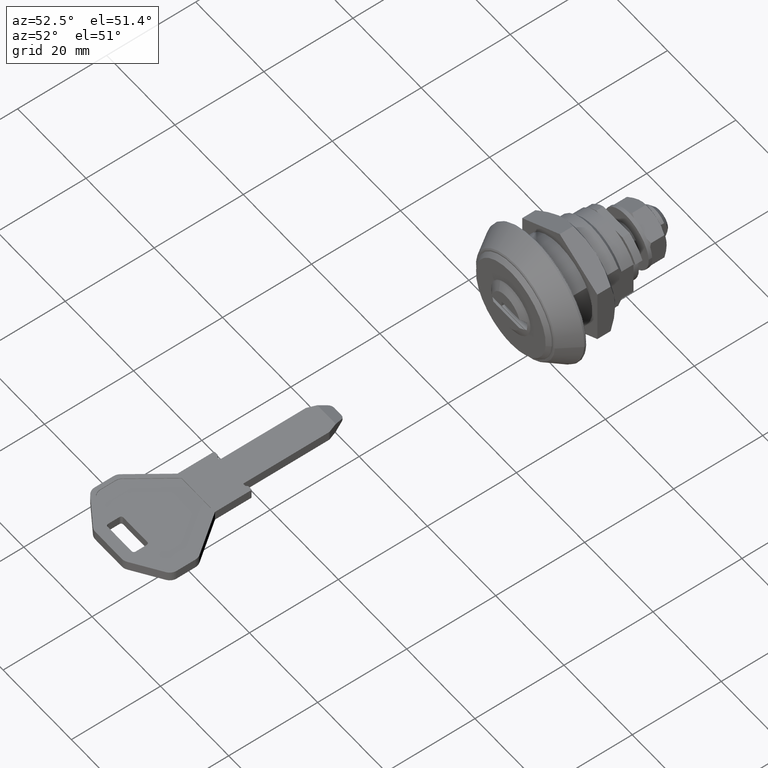
[diagram: clean part render]
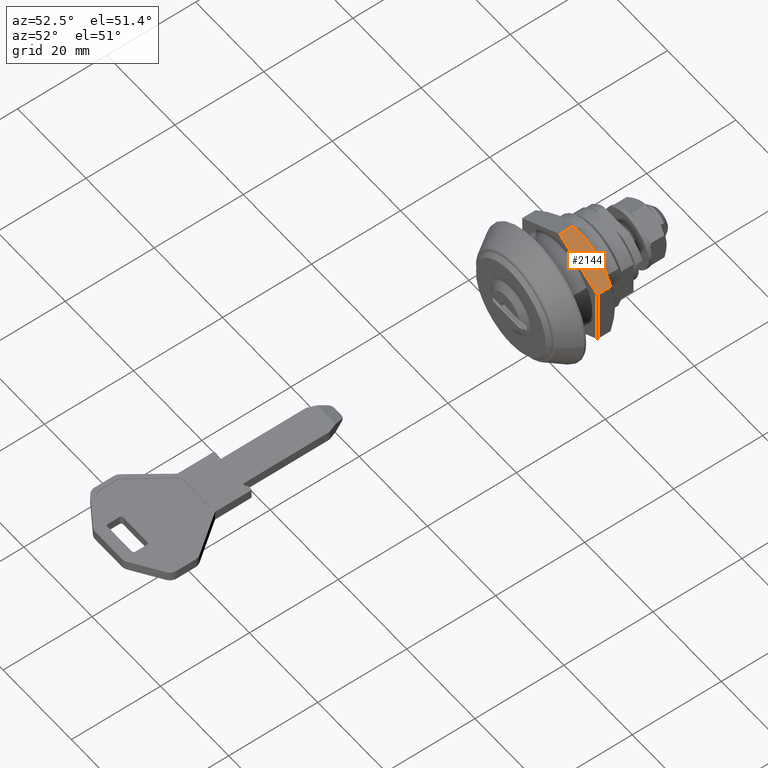
[diagram: same view with one face highlighted and labeled with its STEP entity id]
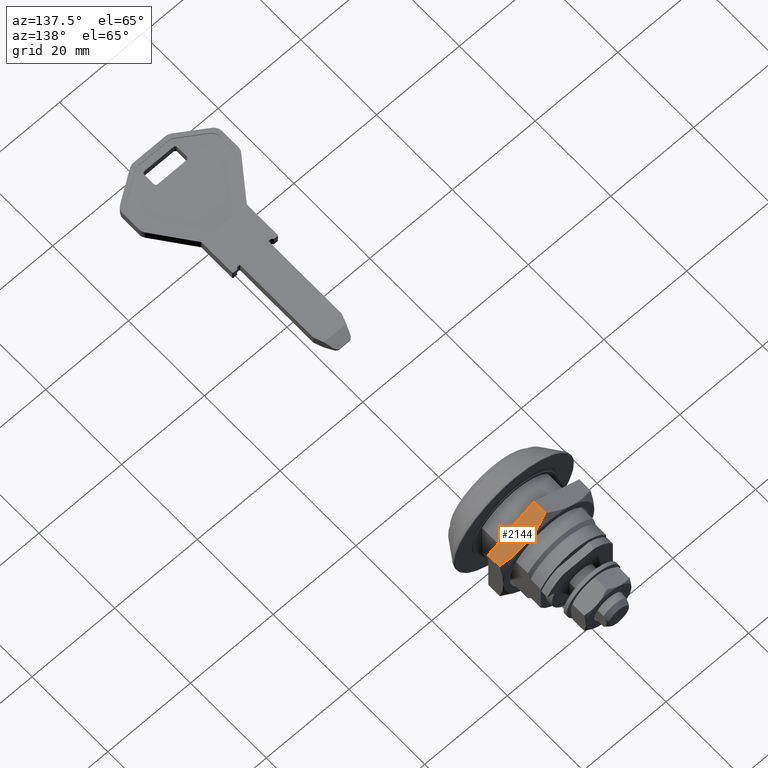
[diagram: same view with one face highlighted and labeled with its STEP entity id]
A machine part, auxiliary view. The second image highlights one B-rep face of the part: STEP entity #2144.
A second angle (auxiliary view) of the same face is appended — the face is thin or edge-on in the first view.
In plain terms, the highlighted face is a freeform B-spline surface patch.
Its self-contained STEP definition (entity closure, byte-faithful):
#1656=CARTESIAN_POINT('',(5.499999999942791,9.100000000000001,9.526279441588342));
#1657=VERTEX_POINT('',#1656);
#1767=CARTESIAN_POINT('',(11.0,8.100000000000001,6.350852960894870));
#1768=VERTEX_POINT('',#1767);
#1769=CARTESIAN_POINT('',(5.499999999942791,9.100000000000001,9.526279441588342));
#1770=CARTESIAN_POINT('',(5.613238213915357,9.099999971303085,9.460901328342038));
#1771=CARTESIAN_POINT('',(5.726649521058714,9.098629515801164,9.395423279633688));
#1772=CARTESIAN_POINT('',(5.957574947854174,9.093036632978610,9.262098422310626));
#1773=CARTESIAN_POINT('',(6.074949705783650,9.088722183471688,9.194332074223993));
#1774=CARTESIAN_POINT('',(6.426124768711379,9.071457702766679,8.991581057110027));
#1775=CARTESIAN_POINT('',(6.659396536786121,9.054173287279561,8.856901539017764));
#1776=CARTESIAN_POINT('',(7.356788676401920,8.985758877742342,8.454261999479947));
#1777=CARTESIAN_POINT('',(7.818480345125748,8.918029869626601,8.187704190259693));
#1778=CARTESIAN_POINT('',(9.195032415040352,8.656592680703682,7.392951482141140));
#1779=CARTESIAN_POINT('',(10.101404799691140,8.404872994768141,6.869657141877075));
#1780=CARTESIAN_POINT('',(11.000000000071180,8.099999999919760,6.350852961045267));
#1781=B_SPLINE_CURVE_WITH_KNOTS('',3,(#1769,#1770,#1771,#1772,#1773,#1774,#1775,#1776,#1777,#1778,#1779,#1780),.UNSPECIFIED.,.F.,.U.,(4,2,2,2,2,4),(0.500999787657983,0.531250000000000,0.562500000000000,0.625000000000000,0.750000000000000,1.0),.UNSPECIFIED.);
#1782=EDGE_CURVE('',#1657,#1768,#1781,.T.);
#2013=CARTESIAN_POINT('',(1.148895E-010,8.100000000000001,12.701705922104500));
#2014=VERTEX_POINT('',#2013);
#2030=CARTESIAN_POINT('',(1.148895E-010,8.100000000000001,12.701705922104500));
#2031=CARTESIAN_POINT('',(0.897390671017595,8.404464325274461,12.183597176690689));
#2032=CARTESIAN_POINT('',(1.801527311532254,8.655519008550854,11.661593643905469));
#2033=CARTESIAN_POINT('',(3.172334283372570,8.916493014385559,10.870157869706610));
#2034=CARTESIAN_POINT('',(3.631709724173487,8.984167932322031,10.604937335301161));
#2035=CARTESIAN_POINT('',(4.555988596706961,9.075751188502110,10.071304679437800));
#2036=CARTESIAN_POINT('',(5.020896850991190,9.099621345316919,9.802889773678370));
#2037=CARTESIAN_POINT('',(5.492515007618721,9.099998503390481,9.530600903994818));
#2038=CARTESIAN_POINT('',(5.496257409298229,9.099999999465979,9.528440227377740));
#2039=CARTESIAN_POINT('',(5.500000000055161,9.099999998565039,9.526279441596758));
#2040=B_SPLINE_CURVE_WITH_KNOTS('',3,(#2030,#2031,#2032,#2033,#2034,#2035,#2036,#2037,#2038,#2039),.UNSPECIFIED.,.F.,.U.,(4,2,2,2,4),(0.0,0.250000000000000,0.375000000000000,0.500000000000000,0.500999787629680),.UNSPECIFIED.);
#2041=EDGE_CURVE('',#2014,#1657,#2040,.T.);
#2105=CARTESIAN_POINT('',(10.999999999990040,5.099999999999994,6.350852961092101));
#2106=VERTEX_POINT('',#2105);
#2107=CARTESIAN_POINT('',(11.0,8.100000000000001,6.350852960894870));
#2108=CARTESIAN_POINT('',(10.999999999990040,5.099999999999994,6.350852961092101));
#2109=QUASI_UNIFORM_CURVE('',1,(#2107,#2108),.UNSPECIFIED.,.F.,.U.);
#2110=EDGE_CURVE('',#1768,#2106,#2109,.T.);
#2122=CARTESIAN_POINT('',(11.549449978767210,4.900200007752773,6.033627867938950));
#2123=CARTESIAN_POINT('',(-0.549450273732929,4.900200007752773,13.018931185616800));
#2124=CARTESIAN_POINT('',(11.549449978767210,9.299800099535581,6.033627867938950));
#2125=CARTESIAN_POINT('',(-0.549450273732929,9.299800099535581,13.018931185616800));
#2126=B_SPLINE_SURFACE_WITH_KNOTS('',1,1,((#2122,#2124),(#2123,#2125)),.UNSPECIFIED.,.F.,.F.,.U.,(2,2),(2,2),(0.0,13.970606635357999),(0.0,4.399600091782808),.UNSPECIFIED.);
#2127=ORIENTED_EDGE('',*,*,#2041,.F.);
#2128=CARTESIAN_POINT('',(-1.000413E-011,5.099999999999994,12.701705922166560));
#2129=VERTEX_POINT('',#2128);
#2130=CARTESIAN_POINT('',(1.148895E-010,8.100000000000001,12.701705922104500));
#2131=CARTESIAN_POINT('',(-1.000413E-011,5.099999999999994,12.701705922166560));
#2132=QUASI_UNIFORM_CURVE('',1,(#2130,#2131),.UNSPECIFIED.,.F.,.U.);
#2133=EDGE_CURVE('',#2014,#2129,#2132,.T.);
#2134=ORIENTED_EDGE('',*,*,#2133,.T.);
#2135=CARTESIAN_POINT('',(-1.000413E-011,5.099999999999994,12.701705922166560));
#2136=CARTESIAN_POINT('',(10.999999999990040,5.099999999999994,6.350852961092101));
#2137=QUASI_UNIFORM_CURVE('',1,(#2135,#2136),.UNSPECIFIED.,.F.,.U.);
#2138=EDGE_CURVE('',#2129,#2106,#2137,.T.);
#2139=ORIENTED_EDGE('',*,*,#2138,.T.);
#2140=ORIENTED_EDGE('',*,*,#2110,.F.);
#2141=ORIENTED_EDGE('',*,*,#1782,.F.);
#2142=EDGE_LOOP('',(#2127,#2134,#2139,#2140,#2141));
#2143=FACE_OUTER_BOUND('',#2142,.T.);
#2144=ADVANCED_FACE('',(#2143),#2126,.F.);